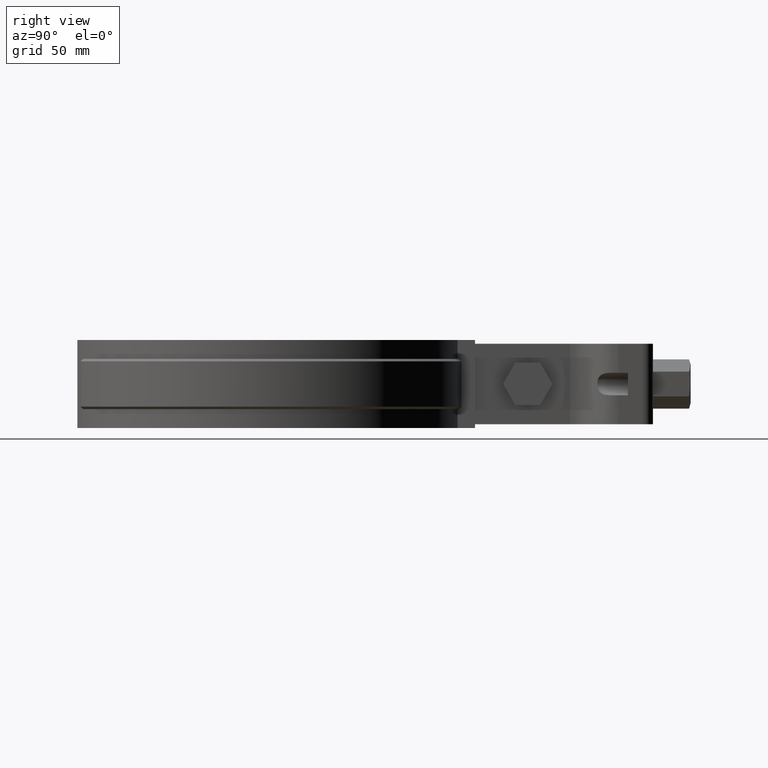
[diagram: clean part render]
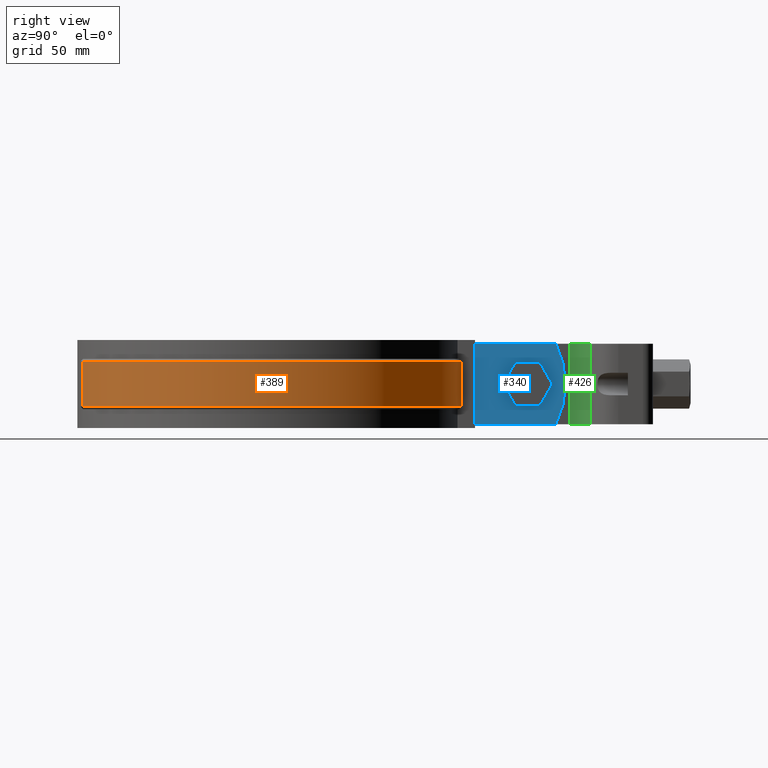
[diagram: same view with three faces highlighted in distinct colors, each labeled with its STEP entity id]
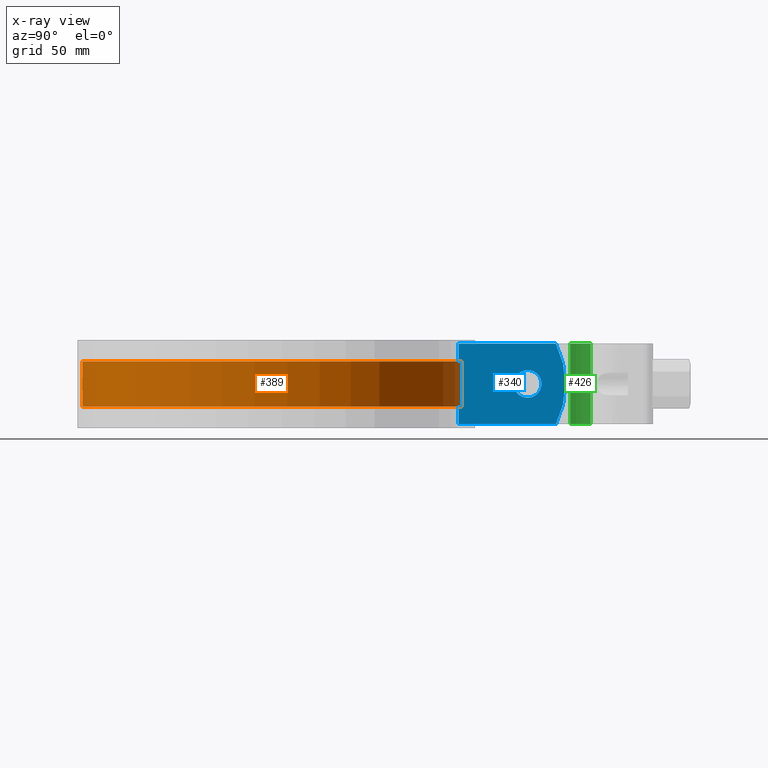
[diagram: x-ray of the same camera — body ghosted, the three highlighted faces saturated]
A machine part, right view with three faces highlighted in distinct colors.
The next image is the same camera in x-ray (body ghosted, the three faces saturated) — at least one of them is partly hidden behind the body in this view.
Their STEP definitions:

[orange] entity #389 — the highlighted cylindrical surface (partial cylindrical patch) has radius 77.5 mm, axis along (0, 0, -1).
#389 = ADVANCED_FACE( '', ( #651 ), #652, .T. );
#651 = FACE_OUTER_BOUND( '', #1786, .T. );
#652 = CYLINDRICAL_SURFACE( '', #1787, 77.5000000000000 );
#1786 = EDGE_LOOP( '', ( #4150, #4151, #4152, #4153 ) );
#1787 = AXIS2_PLACEMENT_3D( '', #4154, #4155, #4156 );
#4150 = ORIENTED_EDGE( '', *, *, #5179, .T. );
#4151 = ORIENTED_EDGE( '', *, *, #5188, .T. );
#4152 = ORIENTED_EDGE( '', *, *, #5184, .F. );
#4153 = ORIENTED_EDGE( '', *, *, #5189, .T. );
#4154 = CARTESIAN_POINT( '', ( 0.000000000000000, 0.000000000000000, -26.0000000000000 ) );
#4155 = DIRECTION( '', ( 0.000000000000000, 0.000000000000000, -1.00000000000000 ) );
#4156 = DIRECTION( '', ( -0.306098023515345, 0.952000000000000, 0.000000000000000 ) );
#5179 = EDGE_CURVE( '', #5795, #5796, #5797, .T. );
#5184 = EDGE_CURVE( '', #5803, #5804, #5805, .T. );
#5188 = EDGE_CURVE( '', #5796, #5804, #5811, .T. );
#5189 = EDGE_CURVE( '', #5803, #5795, #5812, .F. );
#5795 = VERTEX_POINT( '', #8482 );
#5796 = VERTEX_POINT( '', #8483 );
#5797 = LINE( '', #8484, #8485 );
#5803 = VERTEX_POINT( '', #8499 );
#5804 = VERTEX_POINT( '', #8500 );
#5805 = LINE( '', #8501, #8502 );
#5811 = CIRCLE( '', #8509, 77.5000000000000 );
#5812 = CIRCLE( '', #8510, 77.5000000000000 );
#8482 = CARTESIAN_POINT( '', ( 8.40000000000000, 77.0434293110061, -25.0000000000000 ) );
#8483 = CARTESIAN_POINT( '', ( 8.40000000000000, 77.0434293110061, -7.00000000000000 ) );
#8484 = CARTESIAN_POINT( '', ( 8.40000000000000, 77.0434293110061, -26.0000000000000 ) );
#8485 = VECTOR( '', #9569, 1000.00000000000 );
#8499 = CARTESIAN_POINT( '', ( 23.7225968224392, -73.7800000000000, -25.0000000000000 ) );
#8500 = CARTESIAN_POINT( '', ( 23.7225968224392, -73.7800000000000, -7.00000000000000 ) );
#8501 = CARTESIAN_POINT( '', ( 23.7225968224392, -73.7800000000000, -26.0000000000000 ) );
#8502 = VECTOR( '', #9572, 1000.00000000000 );
#8509 = AXIS2_PLACEMENT_3D( '', #9580, #9581, #9582 );
#8510 = AXIS2_PLACEMENT_3D( '', #9583, #9584, #9585 );
#9569 = DIRECTION( '', ( 0.000000000000000, 0.000000000000000, 1.00000000000000 ) );
#9572 = DIRECTION( '', ( 0.000000000000000, 0.000000000000000, 1.00000000000000 ) );
#9580 = CARTESIAN_POINT( '', ( 0.000000000000000, 0.000000000000000, -7.00000000000000 ) );
#9581 = DIRECTION( '', ( 0.000000000000000, 0.000000000000000, -1.00000000000000 ) );
#9582 = DIRECTION( '', ( -1.00000000000000, 0.000000000000000, 0.000000000000000 ) );
#9583 = CARTESIAN_POINT( '', ( 0.000000000000000, 0.000000000000000, -25.0000000000000 ) );
#9584 = DIRECTION( '', ( 0.000000000000000, 0.000000000000000, -1.00000000000000 ) );
#9585 = DIRECTION( '', ( -1.00000000000000, 0.000000000000000, 0.000000000000000 ) );

[blue] entity #340 — the highlighted planar face has unit normal (1, 0, 0).
#340 = ADVANCED_FACE( '', ( #549, #550 ), #551, .T. );
#549 = FACE_BOUND( '', #1311, .T. );
#550 = FACE_OUTER_BOUND( '', #1312, .T. );
#551 = PLANE( '', #1313 );
#1311 = EDGE_LOOP( '', ( #2974 ) );
#1312 = EDGE_LOOP( '', ( #2975, #2976, #2977, #2978 ) );
#1313 = AXIS2_PLACEMENT_3D( '', #2979, #2980, #2981 );
#2974 = ORIENTED_EDGE( '', *, *, #5030, .F. );
#2975 = ORIENTED_EDGE( '', *, *, #4978, .T. );
#2976 = ORIENTED_EDGE( '', *, *, #5019, .T. );
#2977 = ORIENTED_EDGE( '', *, *, #5036, .F. );
#2978 = ORIENTED_EDGE( '', *, *, #5037, .T. );
#2979 = CARTESIAN_POINT( '', ( 6.50000000000000, 118.437380707447, 4.33680868994202E-016 ) );
#2980 = DIRECTION( '', ( 1.00000000000000, 6.02334540269725E-017, 0.000000000000000 ) );
#2981 = DIRECTION( '', ( 6.02334540269725E-017, -1.00000000000000, 0.000000000000000 ) );
#4978 = EDGE_CURVE( '', #5463, #5461, #5464, .T. );
#5019 = EDGE_CURVE( '', #5461, #5527, #5529, .F. );
#5030 = EDGE_CURVE( '', #5546, #5546, #5547, .T. );
#5036 = EDGE_CURVE( '', #5554, #5527, #5556, .T. );
#5037 = EDGE_CURVE( '', #5554, #5463, #5557, .T. );
#5461 = VERTEX_POINT( '', #6384 );
#5463 = VERTEX_POINT( '', #6386 );
#5464 = LINE( '', #6387, #6388 );
#5527 = VERTEX_POINT( '', #7223 );
#5529 = LINE( '', #7225, #7226 );
#5546 = VERTEX_POINT( '', #7247 );
#5547 = CIRCLE( '', #7248, 5.50000000000000 );
#5554 = VERTEX_POINT( '', #7257 );
#5556 = LINE( '', #7260, #7261 );
#5557 = CIRCLE( '', #7262, 36.0000000000000 );
#6384 = CARTESIAN_POINT( '', ( 6.50000000000001, 75.9687435726036, 4.33680868994202E-016 ) );
#6386 = CARTESIAN_POINT( '', ( 6.50000000000000, 114.686411700641, -4.33680868994202E-016 ) );
#6387 = CARTESIAN_POINT( '', ( 6.50000000000000, 118.437380707447, 4.33680868994202E-016 ) );
#6388 = VECTOR( '', #9308, 1000.00000000000 );
#7223 = CARTESIAN_POINT( '', ( 6.50000000000001, 75.9687435726036, -32.0000000000000 ) );
#7225 = CARTESIAN_POINT( '', ( 6.50000000000001, 75.9687435726036, -32.0000000000000 ) );
#7226 = VECTOR( '', #9339, 1000.00000000000 );
#7247 = CARTESIAN_POINT( '', ( 6.50000000000000, 108.937380707447, -16.0000000000000 ) );
#7248 = AXIS2_PLACEMENT_3D( '', #9362, #9363, #9364 );
#7257 = CARTESIAN_POINT( '', ( 6.50000000000000, 114.686411700641, -32.0000000000000 ) );
#7260 = CARTESIAN_POINT( '', ( 6.50000000000000, 118.437380707447, -32.0000000000000 ) );
#7261 = VECTOR( '', #9374, 1000.00000000000 );
#7262 = AXIS2_PLACEMENT_3D( '', #9375, #9376, #9377 );
#9308 = DIRECTION( '', ( 6.02334540269725E-017, -1.00000000000000, 0.000000000000000 ) );
#9339 = DIRECTION( '', ( 0.000000000000000, 0.000000000000000, 1.00000000000000 ) );
#9362 = CARTESIAN_POINT( '', ( 6.50000000000000, 103.437380707447, -16.0000000000000 ) );
#9363 = DIRECTION( '', ( 1.00000000000000, 6.02334540269725E-017, 0.000000000000000 ) );
#9364 = DIRECTION( '', ( -6.02334540269725E-017, 1.00000000000000, 0.000000000000000 ) );
#9374 = DIRECTION( '', ( 6.02334540269725E-017, -1.00000000000000, 0.000000000000000 ) );
#9375 = CARTESIAN_POINT( '', ( 6.50000000000001, 82.4373807074468, -16.0000000000000 ) );
#9376 = DIRECTION( '', ( 1.00000000000000, 6.02334540269725E-017, 0.000000000000000 ) );
#9377 = DIRECTION( '', ( -6.02334540269725E-017, 1.00000000000000, 0.000000000000000 ) );

[green] entity #426 — the highlighted cylindrical surface (edge-blend (fillet) strip) has radius 10 mm, axis along (0, 0, -1).
#426 = ADVANCED_FACE( '', ( #726 ), #727, .F. );
#726 = FACE_OUTER_BOUND( '', #1861, .T. );
#727 = CYLINDRICAL_SURFACE( '', #1862, 10.0000000000000 );
#1861 = EDGE_LOOP( '', ( #4489, #4490, #4491, #4492 ) );
#1862 = AXIS2_PLACEMENT_3D( '', #4493, #4494, #4495 );
#4489 = ORIENTED_EDGE( '', *, *, #5284, .F. );
#4490 = ORIENTED_EDGE( '', *, *, #5313, .F. );
#4491 = ORIENTED_EDGE( '', *, *, #5300, .T. );
#4492 = ORIENTED_EDGE( '', *, *, #5318, .T. );
#4493 = CARTESIAN_POINT( '', ( 15.0000000000000, 120.339115974308, -32.0000000000000 ) );
#4494 = DIRECTION( '', ( 0.000000000000000, 0.000000000000000, -1.00000000000000 ) );
#4495 = DIRECTION( '', ( 0.000000000000000, 1.00000000000000, 0.000000000000000 ) );
#5284 = EDGE_CURVE( '', #5970, #5972, #5973, .T. );
#5300 = EDGE_CURVE( '', #6001, #5999, #6002, .T. );
#5313 = EDGE_CURVE( '', #6001, #5970, #6021, .T. );
#5318 = EDGE_CURVE( '', #5999, #5972, #6027, .T. );
#5970 = VERTEX_POINT( '', #8865 );
#5972 = VERTEX_POINT( '', #8868 );
#5973 = CIRCLE( '', #8869, 10.0000000000000 );
#5999 = VERTEX_POINT( '', #8904 );
#6001 = VERTEX_POINT( '', #8907 );
#6002 = CIRCLE( '', #8908, 10.0000000000000 );
#6021 = LINE( '', #8935, #8936 );
#6027 = LINE( '', #8942, #8943 );
#8865 = CARTESIAN_POINT( '', ( 5.00000000000001, 120.339115974308, -4.16333634234434E-014 ) );
#8868 = CARTESIAN_POINT( '', ( 9.26423563648955, 128.530636417198, -4.16333634234434E-014 ) );
#8869 = AXIS2_PLACEMENT_3D( '', #9728, #9729, #9730 );
#8904 = CARTESIAN_POINT( '', ( 9.26423563648955, 128.530636417198, -32.0000000000000 ) );
#8907 = CARTESIAN_POINT( '', ( 5.00000000000001, 120.339115974308, -32.0000000000000 ) );
#8908 = AXIS2_PLACEMENT_3D( '', #9756, #9757, #9758 );
#8935 = CARTESIAN_POINT( '', ( 5.00000000000001, 120.339115974308, -32.0000000000000 ) );
#8936 = VECTOR( '', #9779, 1000.00000000000 );
#8942 = CARTESIAN_POINT( '', ( 9.26423563648955, 128.530636417198, -32.0000000000000 ) );
#8943 = VECTOR( '', #9792, 1000.00000000000 );
#9728 = CARTESIAN_POINT( '', ( 15.0000000000000, 120.339115974308, -4.16333634234434E-014 ) );
#9729 = DIRECTION( '', ( 0.000000000000000, 0.000000000000000, -1.00000000000000 ) );
#9730 = DIRECTION( '', ( -1.00000000000000, 0.000000000000000, 0.000000000000000 ) );
#9756 = CARTESIAN_POINT( '', ( 15.0000000000000, 120.339115974308, -32.0000000000000 ) );
#9757 = DIRECTION( '', ( 0.000000000000000, 0.000000000000000, -1.00000000000000 ) );
#9758 = DIRECTION( '', ( -1.00000000000000, 0.000000000000000, 0.000000000000000 ) );
#9779 = DIRECTION( '', ( 0.000000000000000, 0.000000000000000, 1.00000000000000 ) );
#9792 = DIRECTION( '', ( 0.000000000000000, 0.000000000000000, 1.00000000000000 ) );